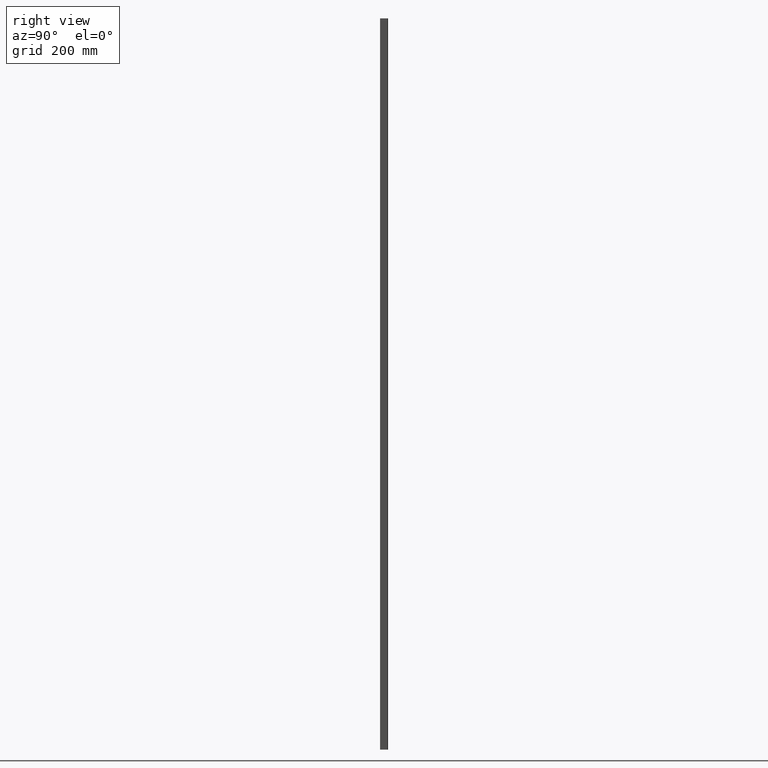
[diagram: clean part render]
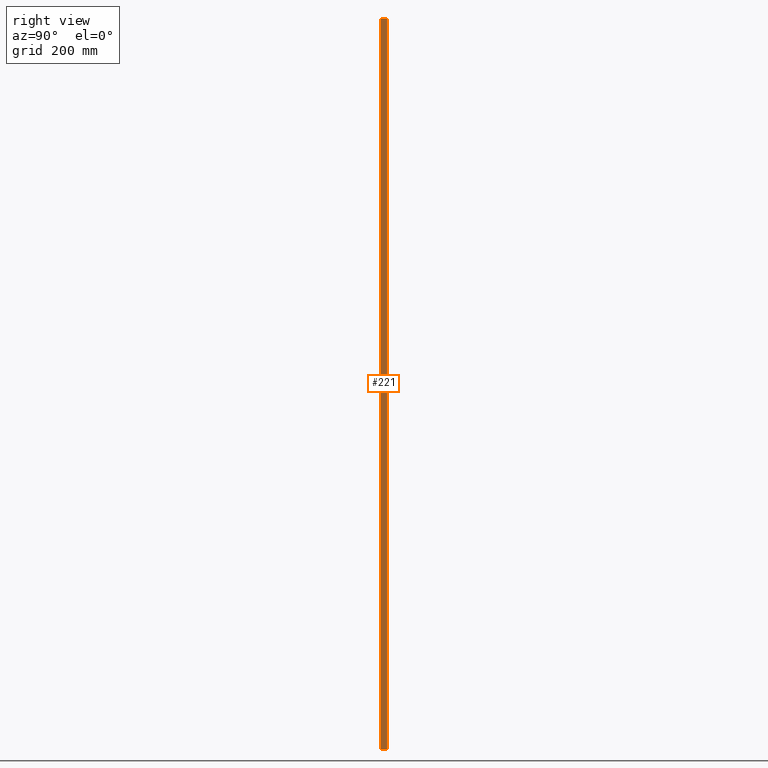
[diagram: same view with one face highlighted and labeled with its STEP entity id]
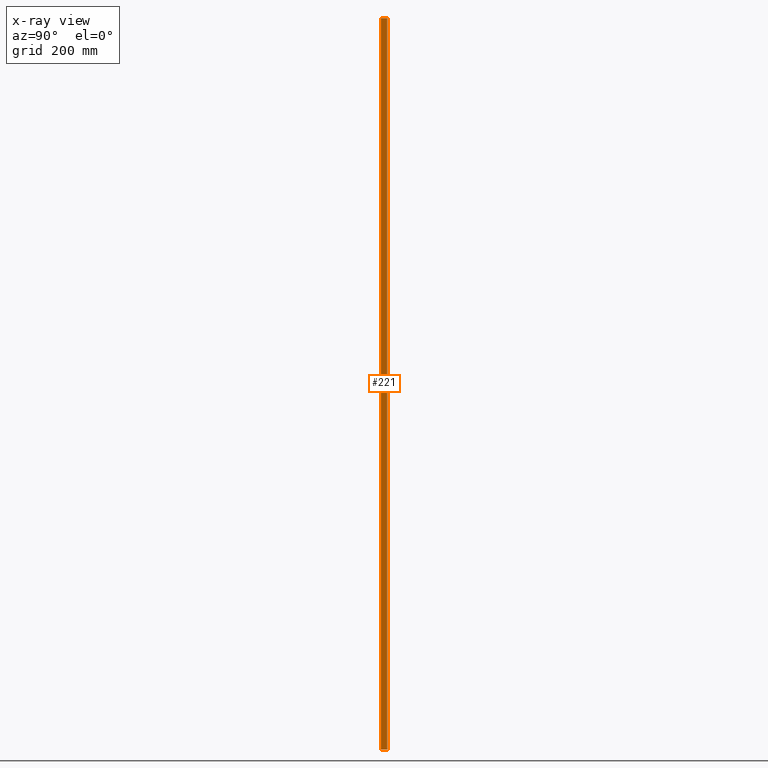
[diagram: x-ray of the same camera — body ghosted, the highlighted face saturated]
A machine part, right view. The second image highlights one B-rep face of the part: STEP entity #221.
The next image is the same camera in x-ray: the body ghosted, the highlighted face saturated — about 0% of this face is hidden behind the body in this view.
In plain terms, the highlighted planar face has unit normal (1, 0, -0).
Its self-contained STEP definition (entity closure, byte-faithful):
#67 = LINE ( 'NONE', #401, #143 ) ;
#77 = LINE ( 'NONE', #313, #142 ) ;
#130 = ORIENTED_EDGE ( 'NONE', *, *, #437, .F. ) ;
#142 = VECTOR ( 'NONE', #760, 1000.000000000000000 ) ;
#143 = VECTOR ( 'NONE', #414, 1000.000000000000000 ) ;
#148 = CARTESIAN_POINT ( 'NONE',  ( 10.30000000000000071, 2.000000000000000000, -1825.000000000000000 ) ) ;
#158 = VECTOR ( 'NONE', #1048, 1000.000000000000000 ) ;
#221 = ADVANCED_FACE ( 'NONE', ( #320 ), #499, .T. ) ;
#238 = DIRECTION ( 'NONE',  ( 0.000000000000000000, 0.000000000000000000, 1.000000000000000000 ) ) ;
#313 = CARTESIAN_POINT ( 'NONE',  ( 10.30000000000000071, 18.00000000000000355, -1825.000000000000000 ) ) ;
#320 = FACE_OUTER_BOUND ( 'NONE', #367, .T. ) ;
#355 = VERTEX_POINT ( 'NONE', #430 ) ;
#367 = EDGE_LOOP ( 'NONE', ( #130, #967, #582, #769 ) ) ;
#401 = CARTESIAN_POINT ( 'NONE',  ( 10.30000000000000071, 18.00000000000000355, -1825.000000000000000 ) ) ;
#407 = VERTEX_POINT ( 'NONE', #786 ) ;
#414 = DIRECTION ( 'NONE',  ( -0.000000000000000000, 1.000000000000000000, -0.000000000000000000 ) ) ;
#430 = CARTESIAN_POINT ( 'NONE',  ( 10.30000000000000071, 2.000000000000000000, -1825.000000000000000 ) ) ;
#437 = EDGE_CURVE ( 'NONE', #1012, #475, #693, .T. ) ;
#475 = VERTEX_POINT ( 'NONE', #736 ) ;
#487 = DIRECTION ( 'NONE',  ( -0.000000000000000000, 0.000000000000000000, -1.000000000000000000 ) ) ;
#491 = CARTESIAN_POINT ( 'NONE',  ( 10.30000000000000071, 2.000000000000000000, 0.000000000000000000 ) ) ;
#499 = PLANE ( 'NONE',  #1082 ) ;
#582 = ORIENTED_EDGE ( 'NONE', *, *, #800, .T. ) ;
#655 = LINE ( 'NONE', #148, #1119 ) ;
#671 = EDGE_CURVE ( 'NONE', #407, #475, #77, .T. ) ;
#693 = LINE ( 'NONE', #797, #158 ) ;
#736 = CARTESIAN_POINT ( 'NONE',  ( 10.30000000000000071, 18.00000000000000355, 0.000000000000000000 ) ) ;
#756 = DIRECTION ( 'NONE',  ( 1.000000000000000000, 0.000000000000000000, -0.000000000000000000 ) ) ;
#760 = DIRECTION ( 'NONE',  ( 0.000000000000000000, 0.000000000000000000, 1.000000000000000000 ) ) ;
#769 = ORIENTED_EDGE ( 'NONE', *, *, #671, .T. ) ;
#786 = CARTESIAN_POINT ( 'NONE',  ( 10.30000000000000071, 18.00000000000000355, -1825.000000000000000 ) ) ;
#797 = CARTESIAN_POINT ( 'NONE',  ( 10.30000000000000071, 18.00000000000000355, 0.000000000000000000 ) ) ;
#800 = EDGE_CURVE ( 'NONE', #355, #407, #67, .T. ) ;
#855 = CARTESIAN_POINT ( 'NONE',  ( 10.30000000000000071, 18.00000000000000355, -1825.000000000000000 ) ) ;
#861 = EDGE_CURVE ( 'NONE', #355, #1012, #655, .T. ) ;
#967 = ORIENTED_EDGE ( 'NONE', *, *, #861, .F. ) ;
#1012 = VERTEX_POINT ( 'NONE', #491 ) ;
#1048 = DIRECTION ( 'NONE',  ( -0.000000000000000000, 1.000000000000000000, -0.000000000000000000 ) ) ;
#1082 = AXIS2_PLACEMENT_3D ( 'NONE', #855, #756, #487 ) ;
#1119 = VECTOR ( 'NONE', #238, 1000.000000000000000 ) ;